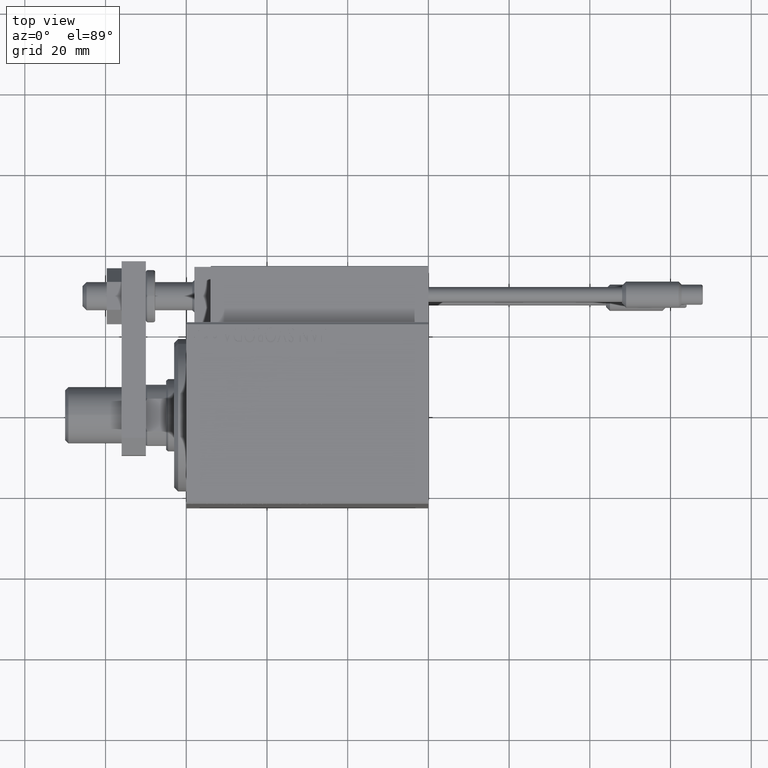
[diagram: clean part render]
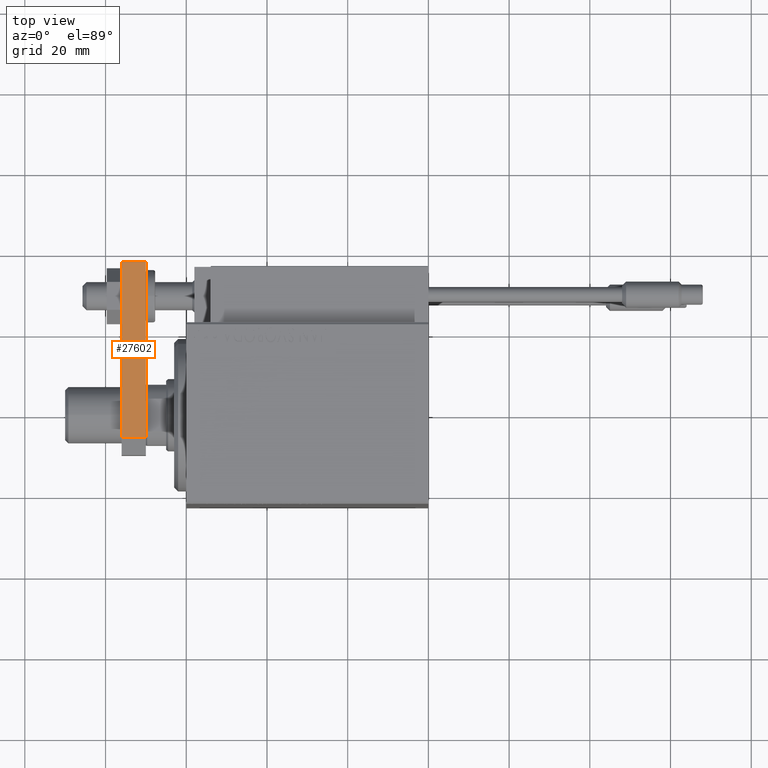
[diagram: same view with one face highlighted and labeled with its STEP entity id]
A machine part, top view. The second image highlights one B-rep face of the part: STEP entity #27602.
In plain terms, the highlighted planar face has unit normal (-0, -0, -1).
Its self-contained STEP definition (entity closure, byte-faithful):
#203 = PLANE ( 'NONE',  #21347 ) ;
#1150 = LINE ( 'NONE', #17161, #16811 ) ;
#3531 = VERTEX_POINT ( 'NONE', #7852 ) ;
#4377 = CARTESIAN_POINT ( 'NONE',  ( 10.00000000000000178, 48.00000000000000000, 6.000000000000000000 ) ) ;
#6114 = VECTOR ( 'NONE', #35159, 1000.000000000000000 ) ;
#7852 = CARTESIAN_POINT ( 'NONE',  ( 10.00000000000000178, 48.00000000000000000, 6.000000000000000000 ) ) ;
#8732 = FACE_OUTER_BOUND ( 'NONE', #19405, .T. ) ;
#9149 = EDGE_CURVE ( 'NONE', #3531, #39676, #15753, .T. ) ;
#9300 = LINE ( 'NONE', #17052, #47185 ) ;
#9417 = DIRECTION ( 'NONE',  ( 0.000000000000000000, 0.000000000000000000, -1.000000000000000000 ) ) ;
#12282 = EDGE_CURVE ( 'NONE', #27778, #42977, #1150, .T. ) ;
#13626 = CARTESIAN_POINT ( 'NONE',  ( 10.00000000000000533, 4.239999999999986890, 6.000000000000000000 ) ) ;
#15753 = LINE ( 'NONE', #4377, #6114 ) ;
#15966 = DIRECTION ( 'NONE',  ( -1.000000000000000000, -7.228014483236695816E-17, 0.000000000000000000 ) ) ;
#16811 = VECTOR ( 'NONE', #9417, 1000.000000000000000 ) ;
#17052 = CARTESIAN_POINT ( 'NONE',  ( 10.00000000000000533, 0.000000000000000000, 6.000000000000000000 ) ) ;
#17161 = CARTESIAN_POINT ( 'NONE',  ( 10.00000000000000533, 4.239999999999986890, 6.000000000000000000 ) ) ;
#17585 = EDGE_CURVE ( 'NONE', #42977, #39676, #20791, .T. ) ;
#18575 = ORIENTED_EDGE ( 'NONE', *, *, #12282, .T. ) ;
#19405 = EDGE_LOOP ( 'NONE', ( #36112, #18575, #33387, #37478 ) ) ;
#20791 = LINE ( 'NONE', #24934, #46714 ) ;
#21347 = AXIS2_PLACEMENT_3D ( 'NONE', #23713, #15966, #43105 ) ;
#22775 = CARTESIAN_POINT ( 'NONE',  ( 10.00000000000000178, 48.00000000000000000, 0.000000000000000000 ) ) ;
#23713 = CARTESIAN_POINT ( 'NONE',  ( 10.00000000000000533, 0.000000000000000000, 6.000000000000000000 ) ) ;
#24934 = CARTESIAN_POINT ( 'NONE',  ( 10.00000000000000533, 0.000000000000000000, 0.000000000000000000 ) ) ;
#27602 = ADVANCED_FACE ( 'NONE', ( #8732 ), #203, .F. ) ;
#27778 = VERTEX_POINT ( 'NONE', #13626 ) ;
#33387 = ORIENTED_EDGE ( 'NONE', *, *, #17585, .T. ) ;
#35159 = DIRECTION ( 'NONE',  ( -0.000000000000000000, -0.000000000000000000, -1.000000000000000000 ) ) ;
#36112 = ORIENTED_EDGE ( 'NONE', *, *, #38892, .F. ) ;
#37478 = ORIENTED_EDGE ( 'NONE', *, *, #9149, .F. ) ;
#38039 = CARTESIAN_POINT ( 'NONE',  ( 10.00000000000000533, 4.239999999999986890, 0.000000000000000000 ) ) ;
#38892 = EDGE_CURVE ( 'NONE', #27778, #3531, #9300, .T. ) ;
#39676 = VERTEX_POINT ( 'NONE', #22775 ) ;
#40694 = DIRECTION ( 'NONE',  ( -7.228014483236695816E-17, 1.000000000000000000, 0.000000000000000000 ) ) ;
#42977 = VERTEX_POINT ( 'NONE', #38039 ) ;
#43105 = DIRECTION ( 'NONE',  ( 7.228014483236695816E-17, -1.000000000000000000, 0.000000000000000000 ) ) ;
#45205 = DIRECTION ( 'NONE',  ( -7.228014483236695816E-17, 1.000000000000000000, 0.000000000000000000 ) ) ;
#46714 = VECTOR ( 'NONE', #40694, 1000.000000000000000 ) ;
#47185 = VECTOR ( 'NONE', #45205, 1000.000000000000000 ) ;